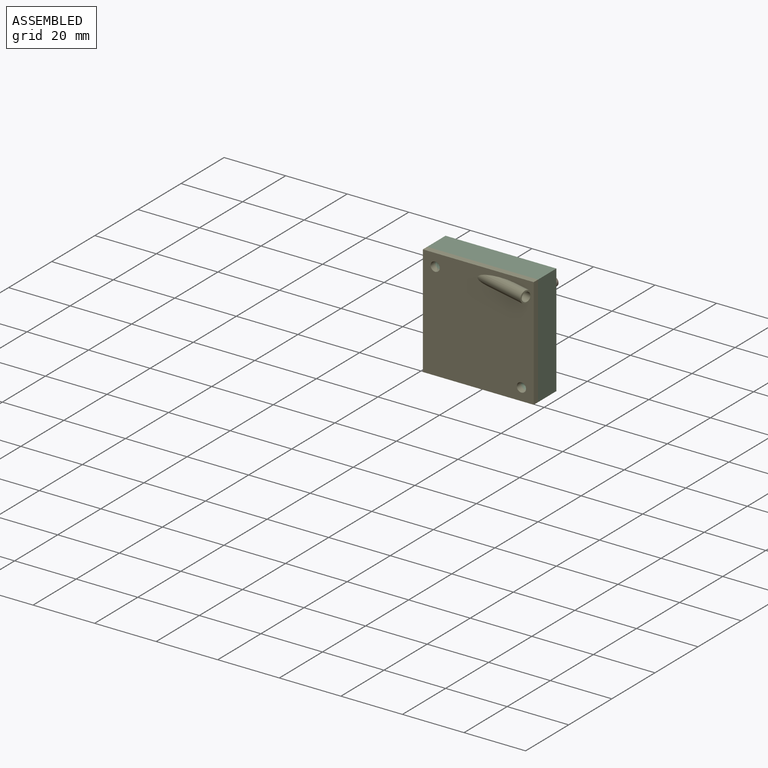
[diagram: assembled view]
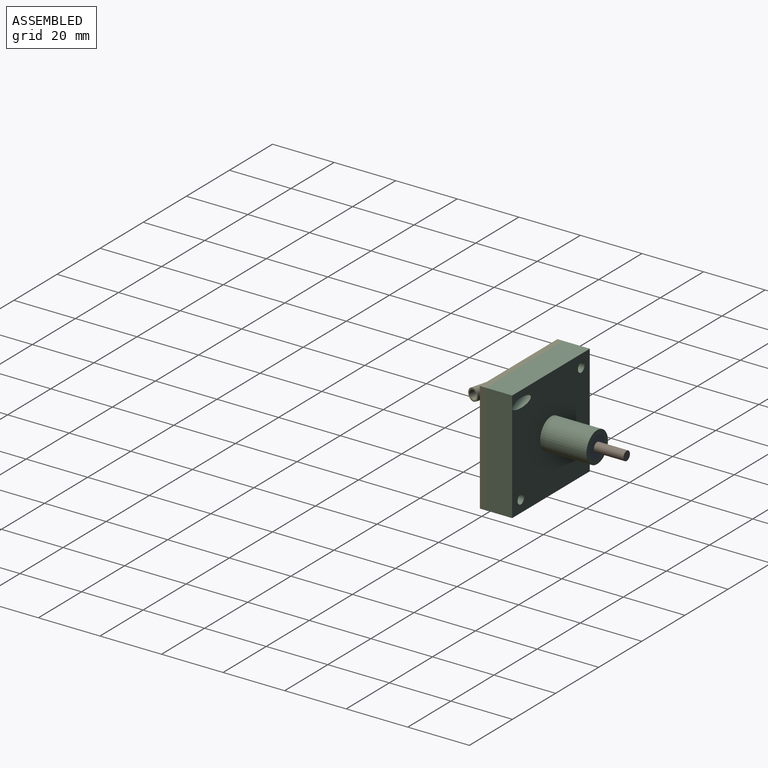
[diagram: assembled view, second angle]
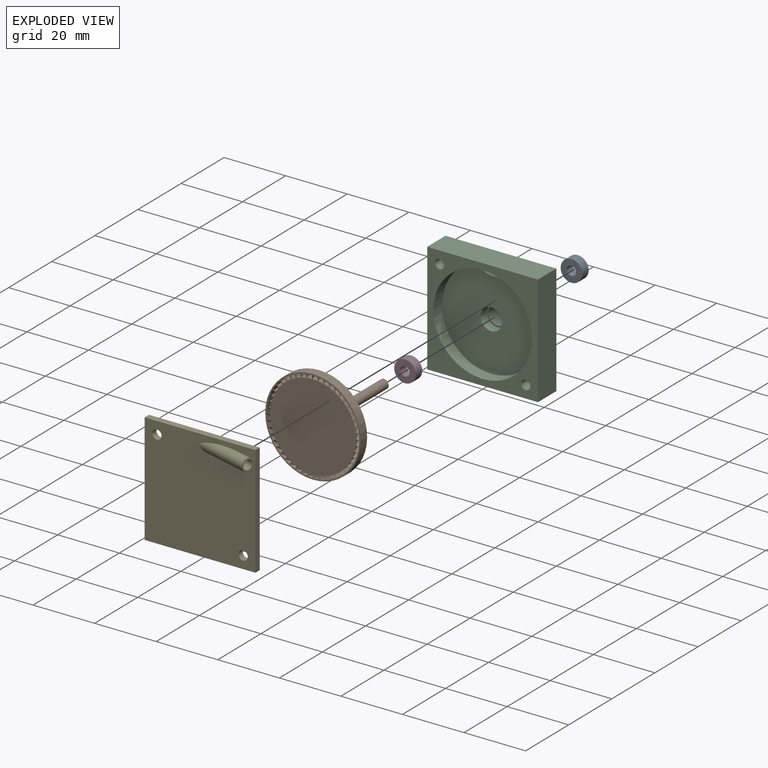
[diagram: exploded view]
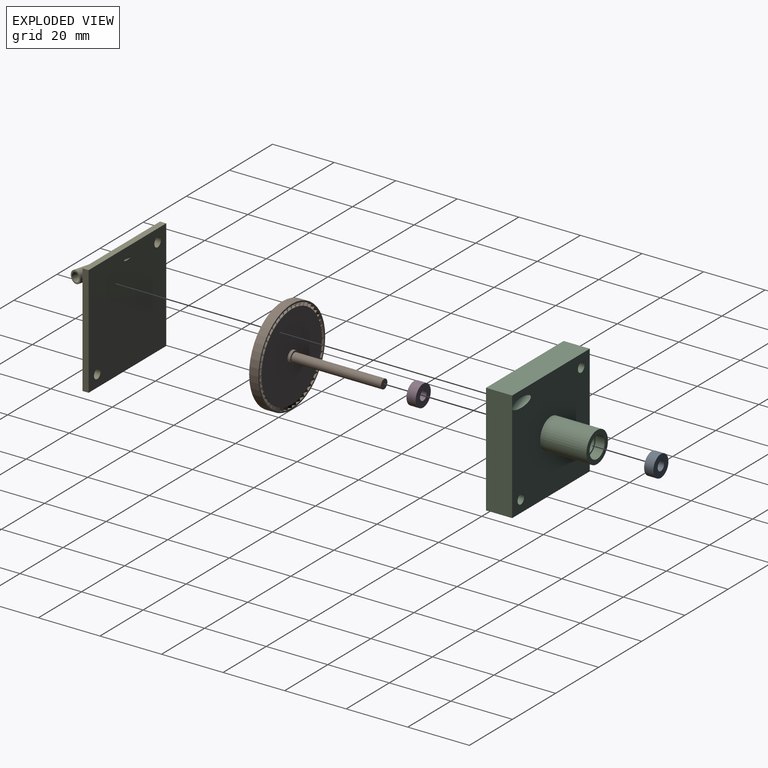
[diagram: exploded view, second angle]
ASSEMBLY  parts=5 mates=4
PART A: 4 faces, bbox 7x3x7 mm
  f0: plane 7x7mm, normal (0,-1,0), area 31.4mm2, adj f1,f3
  f1: cylinder r=1.5mm len=3mm, axis (0,1,0), area 28.3mm2, adj f0,f2
  f2: plane 7x7mm, normal (0,1,0), area 31.4mm2, adj f1,f3
  f3: cylinder r=3.5mm len=7mm, axis (0,1,0), area 66mm2, adj f0,f2
PART B: 295 faces, bbox 31x33x31 mm
  f0: cylinder r=2.02mm len=3mm, axis (0,0,-1), area 3.4mm2, adj f192,f240,f241,f289
  f1: plane 1.03x0.8mm, normal (-0.71,0.7,0), area 1.1mm2, adj f2,f239,f240,f242
  f2: cylinder r=1mm len=1.4mm, axis (0,0,-1), area 1.6mm2, adj f1,f3,f239,f242
  f3: plane 1.03x0.8mm, normal (-0.72,-0.7,0), area 1.1mm2, adj f2,f239,f241,f242
  f4: cylinder r=2.02mm len=3mm, axis (0.13,0,-0.99), area 3.4mm2, adj f239,f240,f241,f242
  f5: plane 1.12x0.91mm, normal (-0.7,0.7,-0.09), area 1.1mm2, adj f6,f238,f240,f243
  f6: cylinder r=1mm len=1.4mm, axis (0.13,0,-0.99), area 1.6mm2, adj f5,f7,f238,f243
  f7: plane 1.12x0.9mm, normal (-0.71,-0.7,-0.09), area 1.1mm2, adj f6,f238,f241,f243
  f8: cylinder r=2.02mm len=3mm, axis (0.26,0,-0.97), area 3.4mm2, adj f238,f240,f241,f243
  f9: plane 1.2x1.01mm, normal (-0.69,0.7,-0.18), area 1.1mm2, adj f10,f237,f240,f244
  f10: cylinder r=1mm len=1.4mm, axis (0.26,0,-0.97), area 1.6mm2, adj f9,f11,f237,f244
  f11: plane 1.19x1.01mm, normal (-0.69,-0.7,-0.19), area 1.1mm2, adj f10,f237,f241,f244
  f12: cylinder r=2.02mm len=3mm, axis (0.38,0,-0.92), area 3.4mm2, adj f237,f240,f241,f244
  f13: plane 1.25x1.1mm, normal (-0.66,0.7,-0.27), area 1.1mm2, adj f14,f236,f240,f245
  f14: cylinder r=1mm len=1.4mm, axis (0.38,0,-0.92), area 1.6mm2, adj f13,f15,f236,f245
  f15: plane 1.25x1.1mm, normal (-0.66,-0.7,-0.27), area 1.1mm2, adj f14,f236,f241,f245
  f16: cylinder r=2.02mm len=3mm, axis (0.5,0,-0.87), area 3.4mm2, adj f236,f240,f241,f245
  f17: plane 1.28x1.17mm, normal (-0.62,0.7,-0.36), area 1.1mm2, adj f18,f235,f240,f246
  f18: cylinder r=1mm len=1.4mm, axis (0.5,0,-0.87), area 1.6mm2, adj f17,f19,f235,f246
  f19: plane 1.28x1.16mm, normal (-0.62,-0.7,-0.36), area 1.1mm2, adj f18,f235,f241,f246
  f20: cylinder r=2.02mm len=3mm, axis (0.61,0,-0.79), area 3.4mm2, adj f235,f240,f241,f246
  f21: plane 1.29x1.22mm, normal (-0.56,0.7,-0.43), area 1.1mm2, adj f22,f234,f240,f247
  f22: cylinder r=1mm len=1.4mm, axis (0.61,0,-0.79), area 1.6mm2, adj f21,f23,f234,f247
  f23: plane 1.29x1.21mm, normal (-0.57,-0.7,-0.44), area 1.1mm2, adj f22,f234,f241,f247
  f24: cylinder r=2.02mm len=3mm, axis (0.71,0,-0.71), area 3.4mm2, adj f234,f240,f241,f247
  f25: plane 1.28x1.25mm, normal (-0.5,0.7,-0.5), area 1.1mm2, adj f26,f233,f240,f248
  f26: cylinder r=1mm len=1.4mm, axis (0.71,0,-0.71), area 1.6mm2, adj f25,f27,f233,f248
  f27: plane 1.28x1.24mm, normal (-0.51,-0.7,-0.51), area 1.1mm2, adj f26,f233,f241,f248
  f28: cylinder r=2.02mm len=3mm, axis (0.79,0,-0.61), area 3.4mm2, adj f233,f240,f241,f248
  f29: plane 1.25x1.25mm, normal (-0.43,0.7,-0.56), area 1.1mm2, adj f30,f232,f240,f249
  f30: cylinder r=1mm len=1.4mm, axis (0.79,0,-0.61), area 1.6mm2, adj f29,f31,f232,f249
  f31: plane 1.25x1.25mm, normal (-0.44,-0.7,-0.57), area 1.1mm2, adj f30,f232,f241,f249
  f32: cylinder r=2.02mm len=3mm, axis (0.87,0,-0.5), area 3.4mm2, adj f232,f240,f241,f249
  f33: plane 1.24x1.2mm, normal (-0.36,0.7,-0.62), area 1.1mm2, adj f34,f231,f240,f250
  f34: cylinder r=1mm len=1.4mm, axis (0.87,0,-0.5), area 1.6mm2, adj f33,f35,f231,f250
  f35: plane 1.24x1.19mm, normal (-0.36,-0.7,-0.62), area 1.1mm2, adj f34,f231,f241,f250
  f36: cylinder r=2.02mm len=3mm, axis (0.92,0,-0.38), area 3.4mm2, adj f231,f240,f241,f250
  f37: plane 1.2x1.12mm, normal (-0.27,0.7,-0.66), area 1.1mm2, adj f38,f230,f240,f251
  f38: cylinder r=1mm len=1.4mm, axis (0.92,0,-0.38), area 1.6mm2, adj f37,f39,f230,f251
  f39: plane 1.2x1.12mm, normal (-0.27,-0.7,-0.66), area 1.1mm2, adj f38,f230,f241,f251
  f40: cylinder r=2.02mm len=3mm, axis (0.97,0,-0.26), area 3.4mm2, adj f230,f240,f241,f251
  f41: plane 1.15x1.03mm, normal (-0.18,0.7,-0.69), area 1.1mm2, adj f42,f229,f240,f252
  f42: cylinder r=1mm len=1.4mm, axis (0.97,0,-0.26), area 1.6mm2, adj f41,f43,f229,f252
  f43: plane 1.14x1.02mm, normal (-0.19,-0.7,-0.69), area 1.1mm2, adj f42,f229,f241,f252
  f44: cylinder r=2.02mm len=3mm, axis (0.99,0,-0.13), area 3.4mm2, adj f229,f240,f241,f252
  f45: plane 1.07x0.92mm, normal (-0.09,0.7,-0.7), area 1.1mm2, adj f46,f228,f240,f253
  f46: cylinder r=1mm len=1.4mm, axis (0.99,0,-0.13), area 1.6mm2, adj f45,f47,f228,f253
  f47: plane 1.07x0.91mm, normal (-0.09,-0.7,-0.71), area 1.1mm2, adj f46,f228,f241,f253
  f48: cylinder r=2.02mm len=3mm, axis (1,0,0), area 3.4mm2, adj f228,f240,f241,f253
  f49: plane 1.03x0.8mm, normal (0,0.7,-0.71), area 1.1mm2, adj f50,f227,f240,f254
  f50: cylinder r=1mm len=1.4mm, axis (1,0,0), area 1.6mm2, adj f49,f51,f227,f254
  f51: plane 1.03x0.8mm, normal (0,-0.7,-0.72), area 1.1mm2, adj f50,f227,f241,f254
  f52: cylinder r=2.02mm len=3mm, axis (0.99,0,0.13), area 3.4mm2, adj f227,f240,f241,f254
  f53: plane 1.12x0.91mm, normal (0.09,0.7,-0.7), area 1.1mm2, adj f54,f226,f240,f255
  f54: cylinder r=1mm len=1.4mm, axis (0.99,0,0.13), area 1.6mm2, adj f53,f55,f226,f255
  f55: plane 1.12x0.9mm, normal (0.09,-0.7,-0.71), area 1.1mm2, adj f54,f226,f241,f255
  f56: cylinder r=2.02mm len=3mm, axis (0.97,0,0.26), area 3.4mm2, adj f226,f240,f241,f255
  f57: plane 1.2x1.01mm, normal (0.18,0.7,-0.69), area 1.1mm2, adj f58,f225,f240,f256
  f58: cylinder r=1mm len=1.4mm, axis (0.97,0,0.26), area 1.6mm2, adj f57,f59,f225,f256
  f59: plane 1.19x1.01mm, normal (0.19,-0.7,-0.69), area 1.1mm2, adj f58,f225,f241,f256
  f60: cylinder r=2.02mm len=3mm, axis (0.92,0,0.38), area 3.4mm2, adj f225,f240,f241,f256
  f61: plane 1.25x1.1mm, normal (0.27,0.7,-0.66), area 1.1mm2, adj f62,f224,f240,f257
  f62: cylinder r=1mm len=1.4mm, axis (0.92,0,0.38), area 1.6mm2, adj f61,f63,f224,f257
  f63: plane 1.25x1.1mm, normal (0.27,-0.7,-0.66), area 1.1mm2, adj f62,f224,f241,f257
  f64: cylinder r=2.02mm len=3mm, axis (0.87,0,0.5), area 3.4mm2, adj f224,f240,f241,f257
  f65: plane 1.28x1.17mm, normal (0.36,0.7,-0.62), area 1.1mm2, adj f66,f223,f240,f258
  f66: cylinder r=1mm len=1.4mm, axis (0.87,0,0.5), area 1.6mm2, adj f65,f67,f223,f258
  f67: plane 1.28x1.16mm, normal (0.36,-0.7,-0.62), area 1.1mm2, adj f66,f223,f241,f258
  f68: cylinder r=2.02mm len=3mm, axis (0.79,0,0.61), area 3.4mm2, adj f223,f240,f241,f258
  f69: plane 1.29x1.22mm, normal (0.43,0.7,-0.56), area 1.1mm2, adj f70,f222,f240,f259
  f70: cylinder r=1mm len=1.4mm, axis (0.79,0,0.61), area 1.6mm2, adj f69,f71,f222,f259
  f71: plane 1.29x1.21mm, normal (0.44,-0.7,-0.57), area 1.1mm2, adj f70,f222,f241,f259
  f72: cylinder r=2.02mm len=3mm, axis (0.71,0,0.71), area 3.4mm2, adj f222,f240,f241,f259
  f73: plane 1.28x1.25mm, normal (0.5,0.7,-0.5), area 1.1mm2, adj f74,f221,f240,f260
  f74: cylinder r=1mm len=1.4mm, axis (0.71,0,0.71), area 1.6mm2, adj f73,f75,f221,f260
  f75: plane 1.28x1.24mm, normal (0.51,-0.7,-0.51), area 1.1mm2, adj f74,f221,f241,f260
  f76: cylinder r=2.02mm len=3mm, axis (0.61,0,0.79), area 3.4mm2, adj f221,f240,f241,f260
  f77: plane 1.25x1.25mm, normal (0.56,0.7,-0.43), area 1.1mm2, adj f78,f220,f240,f261
  f78: cylinder r=1mm len=1.4mm, axis (0.61,0,0.79), area 1.6mm2, adj f77,f79,f220,f261
  f79: plane 1.25x1.25mm, normal (0.57,-0.7,-0.44), area 1.1mm2, adj f78,f220,f241,f261
  f80: cylinder r=2.02mm len=3mm, axis (0.5,0,0.87), area 3.4mm2, adj f220,f240,f241,f261
  f81: plane 1.24x1.2mm, normal (0.62,0.7,-0.36), area 1.1mm2, adj f82,f219,f240,f262
  f82: cylinder r=1mm len=1.4mm, axis (0.5,0,0.87), area 1.6mm2, adj f81,f83,f219,f262
  f83: plane 1.24x1.19mm, normal (0.62,-0.7,-0.36), area 1.1mm2, adj f82,f219,f241,f262
  f84: cylinder r=2.02mm len=3mm, axis (0.38,0,0.92), area 3.4mm2, adj f219,f240,f241,f262
  f85: plane 1.2x1.12mm, normal (0.66,0.7,-0.27), area 1.1mm2, adj f86,f218,f240,f263
  f86: cylinder r=1mm len=1.4mm, axis (0.38,0,0.92), area 1.6mm2, adj f85,f87,f218,f263
  f87: plane 1.2x1.12mm, normal (0.66,-0.7,-0.27), area 1.1mm2, adj f86,f218,f241,f263
  f88: cylinder r=2.02mm len=3mm, axis (0.26,0,0.97), area 3.4mm2, adj f218,f240,f241,f263
  f89: plane 1.15x1.03mm, normal (0.69,0.7,-0.18), area 1.1mm2, adj f90,f217,f240,f264
  f90: cylinder r=1mm len=1.4mm, axis (0.26,0,0.97), area 1.6mm2, adj f89,f91,f217,f264
  f91: plane 1.14x1.02mm, normal (0.69,-0.7,-0.19), area 1.1mm2, adj f90,f217,f241,f264
  f92: cylinder r=2.02mm len=3mm, axis (0.13,0,0.99), area 3.4mm2, adj f217,f240,f241,f264
  f93: plane 1.07x0.92mm, normal (0.7,0.7,-0.09), area 1.1mm2, adj f94,f216,f240,f265
  f94: cylinder r=1mm len=1.4mm, axis (0.13,0,0.99), area 1.6mm2, adj f93,f95,f216,f265
  f95: plane 1.07x0.91mm, normal (0.71,-0.7,-0.09), area 1.1mm2, adj f94,f216,f241,f265
  f96: cylinder r=2.02mm len=3mm, axis (0,0,1), area 3.4mm2, adj f216,f240,f241,f265
  f97: plane 1.03x0.8mm, normal (0.71,0.7,0), area 1.1mm2, adj f98,f215,f240,f266
  f98: cylinder r=1mm len=1.4mm, axis (0,0,1), area 1.6mm2, adj f97,f99,f215,f266
  f99: plane 1.03x0.8mm, normal (0.72,-0.7,0), area 1.1mm2, adj f98,f215,f241,f266
  f100: cylinder r=2.02mm len=3mm, axis (-0.13,0,0.99), area 3.4mm2, adj f215,f240,f241,f266
  f101: plane 1.12x0.91mm, normal (0.7,0.7,0.09), area 1.1mm2, adj f102,f214,f240,f267
  f102: cylinder r=1mm len=1.4mm, axis (-0.13,0,0.99), area 1.6mm2, adj f101,f103,f214,f267
  f103: plane 1.12x0.9mm, normal (0.71,-0.7,0.09), area 1.1mm2, adj f102,f214,f241,f267
  f104: cylinder r=2.02mm len=3mm, axis (-0.26,0,0.97), area 3.4mm2, adj f214,f240,f241,f267
  f105: plane 1.2x1.01mm, normal (0.69,0.7,0.18), area 1.1mm2, adj f106,f213,f240,f268
  f106: cylinder r=1mm len=1.4mm, axis (-0.26,0,0.97), area 1.6mm2, adj f105,f107,f213,f268
  f107: plane 1.19x1.01mm, normal (0.69,-0.7,0.19), area 1.1mm2, adj f106,f213,f241,f268
  f108: cylinder r=2.02mm len=3mm, axis (-0.38,0,0.92), area 3.4mm2, adj f213,f240,f241,f268
  f109: plane 1.25x1.1mm, normal (0.66,0.7,0.27), area 1.1mm2, adj f110,f212,f240,f269
  f110: cylinder r=1mm len=1.4mm, axis (-0.38,0,0.92), area 1.6mm2, adj f109,f111,f212,f269
  f111: plane 1.25x1.1mm, normal (0.66,-0.7,0.27), area 1.1mm2, adj f110,f212,f241,f269
  f112: cylinder r=2.02mm len=3mm, axis (-0.5,0,0.87), area 3.4mm2, adj f212,f240,f241,f269
  f113: plane 1.28x1.17mm, normal (0.62,0.7,0.36), area 1.1mm2, adj f114,f211,f240,f270
  f114: cylinder r=1mm len=1.4mm, axis (-0.5,0,0.87), area 1.6mm2, adj f113,f115,f211,f270
  f115: plane 1.28x1.16mm, normal (0.62,-0.7,0.36), area 1.1mm2, adj f114,f211,f241,f270
  f116: cylinder r=2.02mm len=3mm, axis (-0.61,0,0.79), area 3.4mm2, adj f211,f240,f241,f270
  f117: plane 1.29x1.22mm, normal (0.56,0.7,0.43), area 1.1mm2, adj f118,f210,f240,f271
  f118: cylinder r=1mm len=1.4mm, axis (-0.61,0,0.79), area 1.6mm2, adj f117,f119,f210,f271
  f119: plane 1.29x1.21mm, normal (0.57,-0.7,0.44), area 1.1mm2, adj f118,f210,f241,f271
  f120: cylinder r=2.02mm len=3mm, axis (-0.71,0,0.71), area 3.4mm2, adj f210,f240,f241,f271
  f121: plane 1.28x1.25mm, normal (0.5,0.7,0.5), area 1.1mm2, adj f122,f209,f240,f272
  f122: cylinder r=1mm len=1.4mm, axis (-0.71,0,0.71), area 1.6mm2, adj f121,f123,f209,f272
  f123: plane 1.28x1.24mm, normal (0.51,-0.7,0.51), area 1.1mm2, adj f122,f209,f241,f272
  f124: cylinder r=2.02mm len=3mm, axis (-0.79,0,0.61), area 3.4mm2, adj f209,f240,f241,f272
  f125: plane 1.25x1.25mm, normal (0.43,0.7,0.56), area 1.1mm2, adj f126,f208,f240,f273
  f126: cylinder r=1mm len=1.4mm, axis (-0.79,0,0.61), area 1.6mm2, adj f125,f127,f208,f273
  f127: plane 1.25x1.25mm, normal (0.44,-0.7,0.57), area 1.1mm2, adj f126,f208,f241,f273
  f128: cylinder r=2.02mm len=3mm, axis (-0.87,0,0.5), area 3.4mm2, adj f208,f240,f241,f273
  f129: plane 1.24x1.2mm, normal (0.36,0.7,0.62), area 1.1mm2, adj f130,f207,f240,f274
  f130: cylinder r=1mm len=1.4mm, axis (-0.87,0,0.5), area 1.6mm2, adj f129,f131,f207,f274
  f131: plane 1.24x1.19mm, normal (0.36,-0.7,0.62), area 1.1mm2, adj f130,f207,f241,f274
  f132: cylinder r=2.02mm len=3mm, axis (-0.92,0,0.38), area 3.4mm2, adj f207,f240,f241,f274
  f133: plane 1.2x1.12mm, normal (0.27,0.7,0.66), area 1.1mm2, adj f134,f206,f240,f275
  f134: cylinder r=1mm len=1.4mm, axis (-0.92,0,0.38), area 1.6mm2, adj f133,f135,f206,f275
  f135: plane 1.2x1.12mm, normal (0.27,-0.7,0.66), area 1.1mm2, adj f134,f206,f241,f275
  f136: cylinder r=2.02mm len=3mm, axis (-0.97,0,0.26), area 3.4mm2, adj f206,f240,f241,f275
  f137: plane 1.15x1.03mm, normal (0.18,0.7,0.69), area 1.1mm2, adj f138,f205,f240,f276
  f138: cylinder r=1mm len=1.4mm, axis (-0.97,0,0.26), area 1.6mm2, adj f137,f139,f205,f276
  f139: plane 1.14x1.02mm, normal (0.19,-0.7,0.69), area 1.1mm2, adj f138,f205,f241,f276
  f140: cylinder r=2.02mm len=3mm, axis (-0.99,0,0.13), area 3.4mm2, adj f205,f240,f241,f276
  f141: plane 1.07x0.92mm, normal (0.09,0.7,0.7), area 1.1mm2, adj f142,f204,f240,f277
  f142: cylinder r=1mm len=1.4mm, axis (-0.99,0,0.13), area 1.6mm2, adj f141,f143,f204,f277
  f143: plane 1.07x0.91mm, normal (0.09,-0.7,0.71), area 1.1mm2, adj f142,f204,f241,f277
  f144: cylinder r=2.02mm len=3mm, axis (-1,0,0), area 3.4mm2, adj f204,f240,f241,f277
  f145: plane 1.03x0.8mm, normal (0,0.7,0.71), area 1.1mm2, adj f146,f203,f240,f278
  f146: cylinder r=1mm len=1.4mm, axis (-1,0,0), area 1.6mm2, adj f145,f147,f203,f278
  f147: plane 1.03x0.8mm, normal (0,-0.7,0.72), area 1.1mm2, adj f146,f203,f241,f278
  f148: cylinder r=2.02mm len=3mm, axis (-0.99,0,-0.13), area 3.4mm2, adj f203,f240,f241,f278
  f149: plane 1.12x0.91mm, normal (-0.09,0.7,0.7), area 1.1mm2, adj f150,f202,f240,f279
  f150: cylinder r=1mm len=1.4mm, axis (-0.99,0,-0.13), area 1.6mm2, adj f149,f151,f202,f279
  f151: plane 1.12x0.9mm, normal (-0.09,-0.7,0.71), area 1.1mm2, adj f150,f202,f241,f279
  f152: cylinder r=2.02mm len=3mm, axis (-0.97,0,-0.26), area 3.4mm2, adj f202,f240,f241,f279
  f153: plane 1.2x1.01mm, normal (-0.18,0.7,0.69), area 1.1mm2, adj f154,f201,f240,f280
  f154: cylinder r=1mm len=1.4mm, axis (-0.97,0,-0.26), area 1.6mm2, adj f153,f155,f201,f280
  f155: plane 1.19x1.01mm, normal (-0.19,-0.7,0.69), area 1.1mm2, adj f154,f201,f241,f280
  f156: cylinder r=2.02mm len=3mm, axis (-0.92,0,-0.38), area 3.4mm2, adj f201,f240,f241,f280
  f157: plane 1.25x1.1mm, normal (-0.27,0.7,0.66), area 1.1mm2, adj f158,f200,f240,f281
  f158: cylinder r=1mm len=1.4mm, axis (-0.92,0,-0.38), area 1.6mm2, adj f157,f159,f200,f281
  f159: plane 1.25x1.1mm, normal (-0.27,-0.7,0.66), area 1.1mm2, adj f158,f200,f241,f281
  f160: cylinder r=2.02mm len=3mm, axis (-0.87,0,-0.5), area 3.4mm2, adj f200,f240,f241,f281
  f161: plane 1.28x1.17mm, normal (-0.36,0.7,0.62), area 1.1mm2, adj f162,f199,f240,f282
  f162: cylinder r=1mm len=1.4mm, axis (-0.87,0,-0.5), area 1.6mm2, adj f161,f163,f199,f282
  f163: plane 1.28x1.16mm, normal (-0.36,-0.7,0.62), area 1.1mm2, adj f162,f199,f241,f282
  f164: cylinder r=2.02mm len=3mm, axis (-0.79,0,-0.61), area 3.4mm2, adj f199,f240,f241,f282
  f165: plane 1.29x1.22mm, normal (-0.43,0.7,0.56), area 1.1mm2, adj f166,f198,f240,f283
  f166: cylinder r=1mm len=1.4mm, axis (-0.79,0,-0.61), area 1.6mm2, adj f165,f167,f198,f283
  f167: plane 1.29x1.21mm, normal (-0.44,-0.7,0.57), area 1.1mm2, adj f166,f198,f241,f283
  f168: cylinder r=2.02mm len=3mm, axis (-0.71,0,-0.71), area 3.4mm2, adj f198,f240,f241,f283
  f169: plane 1.28x1.25mm, normal (-0.5,0.7,0.5), area 1.1mm2, adj f170,f197,f240,f284
  f170: cylinder r=1mm len=1.4mm, axis (-0.71,0,-0.71), area 1.6mm2, adj f169,f171,f197,f284
  f171: plane 1.28x1.24mm, normal (-0.51,-0.7,0.51), area 1.1mm2, adj f170,f197,f241,f284
  f172: cylinder r=2.02mm len=3mm, axis (-0.61,0,-0.79), area 3.4mm2, adj f197,f240,f241,f284
  f173: plane 1.25x1.25mm, normal (-0.56,0.7,0.43), area 1.1mm2, adj f174,f196,f240,f285
  f174: cylinder r=1mm len=1.4mm, axis (-0.61,0,-0.79), area 1.6mm2, adj f173,f175,f196,f285
  f175: plane 1.25x1.25mm, normal (-0.57,-0.7,0.44), area 1.1mm2, adj f174,f196,f241,f285
  f176: cylinder r=2.02mm len=3mm, axis (-0.5,0,-0.87), area 3.4mm2, adj f196,f240,f241,f285
  f177: plane 1.24x1.2mm, normal (-0.62,0.7,0.36), area 1.1mm2, adj f178,f195,f240,f286
  f178: cylinder r=1mm len=1.4mm, axis (-0.5,0,-0.87), area 1.6mm2, adj f177,f179,f195,f286
  f179: plane 1.24x1.19mm, normal (-0.62,-0.7,0.36), area 1.1mm2, adj f178,f195,f241,f286
  f180: cylinder r=2.02mm len=3mm, axis (-0.38,0,-0.92), area 3.4mm2, adj f195,f240,f241,f286
  f181: plane 1.2x1.12mm, normal (-0.66,0.7,0.27), area 1.1mm2, adj f182,f194,f240,f287
  f182: cylinder r=1mm len=1.4mm, axis (-0.38,0,-0.92), area 1.6mm2, adj f181,f183,f194,f287
  f183: plane 1.2x1.12mm, normal (-0.66,-0.7,0.27), area 1.1mm2, adj f182,f194,f241,f287
  f184: cylinder r=2.02mm len=3mm, axis (-0.26,0,-0.97), area 3.4mm2, adj f194,f240,f241,f287
  f185: plane 1.15x1.03mm, normal (-0.69,0.7,0.18), area 1.1mm2, adj f186,f193,f240,f288
  f186: cylinder r=1mm len=1.4mm, axis (-0.26,0,-0.97), area 1.6mm2, adj f185,f187,f193,f288
  f187: plane 1.14x1.02mm, normal (-0.69,-0.7,0.19), area 1.1mm2, adj f186,f193,f241,f288
  f188: cylinder r=2.02mm len=3mm, axis (-0.13,0,-0.99), area 3.4mm2, adj f193,f240,f241,f288
  f189: plane 1.07x0.92mm, normal (-0.7,0.7,0.09), area 1.1mm2, adj f190,f192,f240,f289
  f190: cylinder r=1mm len=1.4mm, axis (-0.13,0,-0.99), area 1.6mm2, adj f189,f191,f192,f289
  f191: plane 1.07x0.91mm, normal (-0.71,-0.7,0.09), area 1.1mm2, adj f190,f192,f241,f289
  f192: cylinder r=14mm len=3mm, axis (0,-1,0), area 4.4mm2, adj f0,f189,f190,f191,f240,f241
  f193: cylinder r=14mm len=3mm, axis (0,-1,0), area 4.4mm2, adj f185,f186,f187,f188,f240,f241
  f194: cylinder r=14mm len=3mm, axis (0,-1,0), area 4.4mm2, adj f181,f182,f183,f184,f240,f241
  f195: cylinder r=14mm len=3mm, axis (0,-1,0), area 4.4mm2, adj f177,f178,f179,f180,f240,f241
  f196: cylinder r=14mm len=3mm, axis (0,-1,0), area 4.4mm2, adj f173,f174,f175,f176,f240,f241
  f197: cylinder r=14mm len=3mm, axis (0,-1,0), area 4.4mm2, adj f169,f170,f171,f172,f240,f241
  f198: cylinder r=14mm len=3mm, axis (0,-1,0), area 4.4mm2, adj f165,f166,f167,f168,f240,f241
  f199: cylinder r=14mm len=3mm, axis (0,-1,0), area 4.4mm2, adj f161,f162,f163,f164,f240,f241
  f200: cylinder r=14mm len=3mm, axis (0,-1,0), area 4.4mm2, adj f157,f158,f159,f160,f240,f241
  f201: cylinder r=14mm len=3mm, axis (0,-1,0), area 4.4mm2, adj f153,f154,f155,f156,f240,f241
  f202: cylinder r=14mm len=3mm, axis (0,-1,0), area 4.4mm2, adj f149,f150,f151,f152,f240,f241
  f203: cylinder r=14mm len=3mm, axis (0,-1,0), area 4.4mm2, adj f145,f146,f147,f148,f240,f241
  f204: cylinder r=14mm len=3mm, axis (0,-1,0), area 4.4mm2, adj f141,f142,f143,f144,f240,f241
  f205: cylinder r=14mm len=3mm, axis (0,-1,0), area 4.4mm2, adj f137,f138,f139,f140,f240,f241
  f206: cylinder r=14mm len=3mm, axis (0,-1,0), area 4.4mm2, adj f133,f134,f135,f136,f240,f241
  f207: cylinder r=14mm len=3mm, axis (0,-1,0), area 4.4mm2, adj f129,f130,f131,f132,f240,f241
  f208: cylinder r=14mm len=3mm, axis (0,-1,0), area 4.4mm2, adj f125,f126,f127,f128,f240,f241
  f209: cylinder r=14mm len=3mm, axis (0,-1,0), area 4.4mm2, adj f121,f122,f123,f124,f240,f241
  f210: cylinder r=14mm len=3mm, axis (0,-1,0), area 4.4mm2, adj f117,f118,f119,f120,f240,f241
  f211: cylinder r=14mm len=3mm, axis (0,-1,0), area 4.4mm2, adj f113,f114,f115,f116,f240,f241
  f212: cylinder r=14mm len=3mm, axis (0,-1,0), area 4.4mm2, adj f109,f110,f111,f112,f240,f241
  f213: cylinder r=14mm len=3mm, axis (0,-1,0), area 4.4mm2, adj f105,f106,f107,f108,f240,f241
  f214: cylinder r=14mm len=3mm, axis (0,-1,0), area 4.4mm2, adj f101,f102,f103,f104,f240,f241
  f215: cylinder r=14mm len=3mm, axis (0,-1,0), area 4.4mm2, adj f97,f98,f99,f100,f240,f241
  f216: cylinder r=14mm len=3mm, axis (0,-1,0), area 4.4mm2, adj f93,f94,f95,f96,f240,f241
  f217: cylinder r=14mm len=3mm, axis (0,-1,0), area 4.4mm2, adj f89,f90,f91,f92,f240,f241
  f218: cylinder r=14mm len=3mm, axis (0,-1,0), area 4.4mm2, adj f85,f86,f87,f88,f240,f241
  f219: cylinder r=14mm len=3mm, axis (0,-1,0), area 4.4mm2, adj f81,f82,f83,f84,f240,f241
  f220: cylinder r=14mm len=3mm, axis (0,-1,0), area 4.4mm2, adj f77,f78,f79,f80,f240,f241
  f221: cylinder r=14mm len=3mm, axis (0,-1,0), area 4.4mm2, adj f73,f74,f75,f76,f240,f241
  f222: cylinder r=14mm len=3mm, axis (0,-1,0), area 4.4mm2, adj f69,f70,f71,f72,f240,f241
  f223: cylinder r=14mm len=3mm, axis (0,-1,0), area 4.4mm2, adj f65,f66,f67,f68,f240,f241
  f224: cylinder r=14mm len=3mm, axis (0,-1,0), area 4.4mm2, adj f61,f62,f63,f64,f240,f241
  f225: cylinder r=14mm len=3mm, axis (0,-1,0), area 4.4mm2, adj f57,f58,f59,f60,f240,f241
  f226: cylinder r=14mm len=3mm, axis (0,-1,0), area 4.4mm2, adj f53,f54,f55,f56,f240,f241
  f227: cylinder r=14mm len=3mm, axis (0,-1,0), area 4.4mm2, adj f49,f50,f51,f52,f240,f241
  f228: cylinder r=14mm len=3mm, axis (0,-1,0), area 4.4mm2, adj f45,f46,f47,f48,f240,f241
  f229: cylinder r=14mm len=3mm, axis (0,-1,0), area 4.4mm2, adj f41,f42,f43,f44,f240,f241
  f230: cylinder r=14mm len=3mm, axis (0,-1,0), area 4.4mm2, adj f37,f38,f39,f40,f240,f241
  f231: cylinder r=14mm len=3mm, axis (0,-1,0), area 4.4mm2, adj f33,f34,f35,f36,f240,f241
  f232: cylinder r=14mm len=3mm, axis (0,-1,0), area 4.4mm2, adj f29,f30,f31,f32,f240,f241
  f233: cylinder r=14mm len=3mm, axis (0,-1,0), area 4.4mm2, adj f25,f26,f27,f28,f240,f241
  f234: cylinder r=14mm len=3mm, axis (0,-1,0), area 4.4mm2, adj f21,f22,f23,f24,f240,f241
  f235: cylinder r=14mm len=3mm, axis (0,-1,0), area 4.4mm2, adj f17,f18,f19,f20,f240,f241
  f236: cylinder r=14mm len=3mm, axis (0,-1,0), area 4.4mm2, adj f13,f14,f15,f16,f240,f241
  f237: cylinder r=14mm len=3mm, axis (0,-1,0), area 4.4mm2, adj f9,f10,f11,f12,f240,f241
  f238: cylinder r=14mm len=3mm, axis (0,-1,0), area 4.4mm2, adj f5,f6,f7,f8,f240,f241
  f239: cylinder r=14mm len=3mm, axis (0,-1,0), area 4.4mm2, adj f1,f2,f3,f4,f240,f241
  f240: plane 31x31mm, normal (0,1,0), area 659.2mm2, adj f0,f1,f4,f5,f8,f9,f12,f13
  f241: plane 31x31mm, normal (0,-1,0), area 672.4mm2, adj f0,f3,f4,f7,f8,f11,f12,f15
  f242: cylinder r=15mm len=3mm, axis (0,-1,0), area 4.7mm2, adj f1,f2,f3,f4,f240,f241
  f243: cylinder r=15mm len=3mm, axis (0,-1,0), area 4.7mm2, adj f5,f6,f7,f8,f240,f241
  f244: cylinder r=15mm len=3mm, axis (0,-1,0), area 4.7mm2, adj f9,f10,f11,f12,f240,f241
  f245: cylinder r=15mm len=3mm, axis (0,-1,0), area 4.7mm2, adj f13,f14,f15,f16,f240,f241
  f246: cylinder r=15mm len=3mm, axis (0,-1,0), area 4.7mm2, adj f17,f18,f19,f20,f240,f241
  f247: cylinder r=15mm len=3mm, axis (0,-1,0), area 4.7mm2, adj f21,f22,f23,f24,f240,f241
  f248: cylinder r=15mm len=3mm, axis (0,-1,0), area 4.7mm2, adj f25,f26,f27,f28,f240,f241
  f249: cylinder r=15mm len=3mm, axis (0,-1,0), area 4.7mm2, adj f29,f30,f31,f32,f240,f241
  f250: cylinder r=15mm len=3mm, axis (0,-1,0), area 4.7mm2, adj f33,f34,f35,f36,f240,f241
  f251: cylinder r=15mm len=3mm, axis (0,-1,0), area 4.7mm2, adj f37,f38,f39,f40,f240,f241
  f252: cylinder r=15mm len=3mm, axis (0,-1,0), area 4.7mm2, adj f41,f42,f43,f44,f240,f241
  f253: cylinder r=15mm len=3mm, axis (0,-1,0), area 4.7mm2, adj f45,f46,f47,f48,f240,f241
  f254: cylinder r=15mm len=3mm, axis (0,-1,0), area 4.7mm2, adj f49,f50,f51,f52,f240,f241
  f255: cylinder r=15mm len=3mm, axis (0,-1,0), area 4.7mm2, adj f53,f54,f55,f56,f240,f241
  f256: cylinder r=15mm len=3mm, axis (0,-1,0), area 4.7mm2, adj f57,f58,f59,f60,f240,f241
  f257: cylinder r=15mm len=3mm, axis (0,-1,0), area 4.7mm2, adj f61,f62,f63,f64,f240,f241
  f258: cylinder r=15mm len=3mm, axis (0,-1,0), area 4.7mm2, adj f65,f66,f67,f68,f240,f241
  f259: cylinder r=15mm len=3mm, axis (0,-1,0), area 4.7mm2, adj f69,f70,f71,f72,f240,f241
  f260: cylinder r=15mm len=3mm, axis (0,-1,0), area 4.7mm2, adj f73,f74,f75,f76,f240,f241
  f261: cylinder r=15mm len=3mm, axis (0,-1,0), area 4.7mm2, adj f77,f78,f79,f80,f240,f241
  f262: cylinder r=15mm len=3mm, axis (0,-1,0), area 4.7mm2, adj f81,f82,f83,f84,f240,f241
  f263: cylinder r=15mm len=3mm, axis (0,-1,0), area 4.7mm2, adj f85,f86,f87,f88,f240,f241
  f264: cylinder r=15mm len=3mm, axis (0,-1,0), area 4.7mm2, adj f89,f90,f91,f92,f240,f241
  f265: cylinder r=15mm len=3mm, axis (0,-1,0), area 4.7mm2, adj f93,f94,f95,f96,f240,f241
  f266: cylinder r=15mm len=3mm, axis (0,-1,0), area 4.7mm2, adj f97,f98,f99,f100,f240,f241
  f267: cylinder r=15mm len=3mm, axis (0,-1,0), area 4.7mm2, adj f101,f102,f103,f104,f240,f241
  f268: cylinder r=15mm len=3mm, axis (0,-1,0), area 4.7mm2, adj f105,f106,f107,f108,f240,f241
  f269: cylinder r=15mm len=3mm, axis (0,-1,0), area 4.7mm2, adj f109,f110,f111,f112,f240,f241
  f270: cylinder r=15mm len=3mm, axis (0,-1,0), area 4.7mm2, adj f113,f114,f115,f116,f240,f241
  f271: cylinder r=15mm len=3mm, axis (0,-1,0), area 4.7mm2, adj f117,f118,f119,f120,f240,f241
  f272: cylinder r=15mm len=3mm, axis (0,-1,0), area 4.7mm2, adj f121,f122,f123,f124,f240,f241
  f273: cylinder r=15mm len=3mm, axis (0,-1,0), area 4.7mm2, adj f125,f126,f127,f128,f240,f241
  f274: cylinder r=15mm len=3mm, axis (0,-1,0), area 4.7mm2, adj f129,f130,f131,f132,f240,f241
  f275: cylinder r=15mm len=3mm, axis (0,-1,0), area 4.7mm2, adj f133,f134,f135,f136,f240,f241
  f276: cylinder r=15mm len=3mm, axis (0,-1,0), area 4.7mm2, adj f137,f138,f139,f140,f240,f241
  f277: cylinder r=15mm len=3mm, axis (0,-1,0), area 4.7mm2, adj f141,f142,f143,f144,f240,f241
  f278: cylinder r=15mm len=3mm, axis (0,-1,0), area 4.7mm2, adj f145,f146,f147,f148,f240,f241
  f279: cylinder r=15mm len=3mm, axis (0,-1,0), area 4.7mm2, adj f149,f150,f151,f152,f240,f241
  f280: cylinder r=15mm len=3mm, axis (0,-1,0), area 4.7mm2, adj f153,f154,f155,f156,f240,f241
  f281: cylinder r=15mm len=3mm, axis (0,-1,0), area 4.7mm2, adj f157,f158,f159,f160,f240,f241
  f282: cylinder r=15mm len=3mm, axis (0,-1,0), area 4.7mm2, adj f161,f162,f163,f164,f240,f241
  f283: cylinder r=15mm len=3mm, axis (0,-1,0), area 4.7mm2, adj f165,f166,f167,f168,f240,f241
  f284: cylinder r=15mm len=3mm, axis (0,-1,0), area 4.7mm2, adj f169,f170,f171,f172,f240,f241
  f285: cylinder r=15mm len=3mm, axis (0,-1,0), area 4.7mm2, adj f173,f174,f175,f176,f240,f241
  f286: cylinder r=15mm len=3mm, axis (0,-1,0), area 4.7mm2, adj f177,f178,f179,f180,f240,f241
  f287: cylinder r=15mm len=3mm, axis (0,-1,0), area 4.7mm2, adj f181,f182,f183,f184,f240,f241
  f288: cylinder r=15mm len=3mm, axis (0,-1,0), area 4.7mm2, adj f185,f186,f187,f188,f240,f241
  f289: cylinder r=15mm len=3mm, axis (0,-1,0), area 4.7mm2, adj f0,f189,f190,f191,f240,f241
  f290: cylinder r=15.5mm len=31mm, axis (0,-1,0), area 292.2mm2, adj f240,f241
  f291: cylinder r=2mm len=4mm, axis (0,-1,0), area 11.3mm2, adj f240,f292
  f292: plane 4x4mm, normal (0,1,0), area 5.5mm2, adj f291,f294
  f293: plane 3x3mm, normal (0,1,0), area 7.1mm2, adj f294
  f294: cylinder r=1.5mm len=29.1mm, axis (0,-1,0), area 274.3mm2, adj f292,f293
PART C: 18 faces, bbox 36x23.5x36 mm
  f0: plane 32.01x32.01mm, normal (0,1,0), area 745.1mm2, adj f1,f12,f17
  f1: cylinder r=16mm len=32mm, axis (0,1,0), area 402.1mm2, adj f0,f7,f17
  f2: cylinder r=3mm len=13.5mm, axis (0,-1,0), area 254.5mm2, adj f11,f13
  f3: plane 36x8.5mm, normal (1,0,0), area 306mm2, adj f4,f6,f7,f8
  f4: plane 36x8.5mm, normal (0,0,1), area 306mm2, adj f3,f5,f7,f8
  f5: plane 36.03x8.53mm, normal (-1,0,0), area 306mm2, adj f4,f6,f7,f8,f17
  f6: plane 36x8.5mm, normal (0,0,-1), area 306mm2, adj f3,f5,f7,f8
  f7: plane 36x36mm, normal (0,1,0), area 477.6mm2, adj f1,f3,f4,f5,f6,f15,f16
  f8: plane 36x36mm, normal (0,-1,0), area 1182.7mm2, adj f3,f4,f5,f6,f9,f15,f16,f17
  f9: cylinder r=5mm len=15mm, axis (0,1,0), area 471.2mm2, adj f8,f10
  f10: plane 10x10mm, normal (0,-1,0), area 40.1mm2, adj f9,f14
  f11: plane 7x7mm, normal (0,1,0), area 10.2mm2, adj f2,f12
  f12: cylinder r=3.5mm len=7mm, axis (0,1,0), area 66mm2, adj f0,f11
  f13: plane 7x7mm, normal (0,-1,0), area 10.2mm2, adj f2,f14
  f14: cylinder r=3.5mm len=7mm, axis (0,-1,0), area 66mm2, adj f10,f13
  f15: cylinder r=1.5mm len=8.5mm, axis (0,1,0), area 80.1mm2, adj f7,f8
  f16: cylinder r=1.5mm len=8.5mm, axis (0,1,0), area 80.1mm2, adj f7,f8
  f17: cylinder r=1.5mm len=21.01mm, axis (-0.94,-0.34,0), area 124mm2, adj f0,f1,f5,f8
PART D: same geometry as A
PART E: 13 faces, bbox 36x8.5x36 mm
  f0: plane 36x2mm, normal (0,0,1), area 72mm2, adj f1,f5,f6,f7
  f1: plane 36x2mm, normal (-1,0,0), area 72mm2, adj f0,f2,f6,f7
  f2: plane 36x2mm, normal (0,0,-1), area 72mm2, adj f1,f5,f6,f7
  f3: cylinder r=1.5mm len=3mm, axis (0,1,0), area 18.8mm2, adj f6,f7
  f4: cylinder r=1.5mm len=3mm, axis (0,1,0), area 18.8mm2, adj f6,f7
  f5: plane 36x2mm, normal (1,0,0), area 72mm2, adj f0,f2,f6,f7
  f6: plane 36x36mm, normal (0,-1,0), area 1233.3mm2, adj f0,f1,f2,f3,f4,f5,f9
  f7: plane 36x36mm, normal (0,1,0), area 1279.9mm2, adj f0,f1,f2,f3,f4,f5,f10
  f8: plane 4x3.86mm, normal (0.97,-0.26,0), area 5.5mm2, adj f9,f11
  f9: cylinder r=2mm len=18.17mm, axis (-0.97,0.26,0), area 129.1mm2, adj f6,f8
  f10: cylinder r=0.4mm len=7.45mm, axis (-0.97,0.26,0), area 15.1mm2, adj f7,f12
  f11: cylinder r=1.5mm len=10.53mm, axis (-0.97,0.26,0), area 95.1mm2, adj f8,f12
  f12: cone r=0.4mm half-angle=30deg, axis (0.97,-0.26,0), area 13.1mm2, adj f10,f11
PLACE A rot(axis=(-1,0,0),180deg) t=(0,23.5,0)mm
PLACE B t=(0,0.1,0)mm
PLACE C rot(axis=(0,0,1),180deg) t=(0,8.5,0)mm
PLACE D t=(0,4,0)mm
PLACE E at identity
MATE fastened A.f1 <-> C.f9  axis (0,1,0) through (0,23.5,0)mm
MATE fastened C.f15 <-> E.f4  axis (0,-1,0) through (14,0,-14)mm
MATE fastened D.f1 <-> B.f291  axis (0,-1,0) through (0,4,0)mm
MATE fastened D.f1 <-> C.f1  axis (0,-1,0) through (0,4,0)mm
